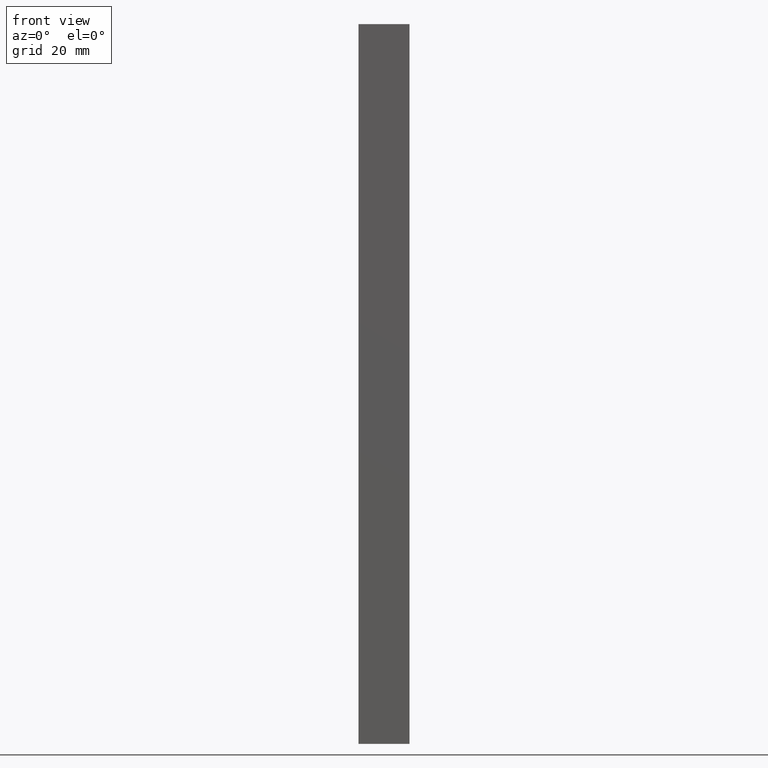
[diagram: clean part render]
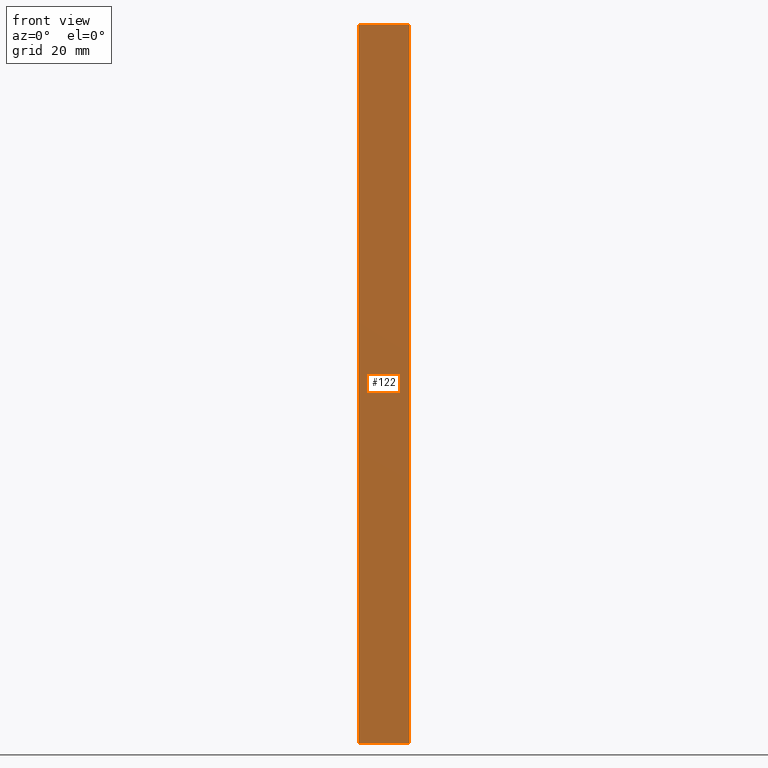
[diagram: same view with one face highlighted and labeled with its STEP entity id]
A machine part, front view. The second image highlights one B-rep face of the part: STEP entity #122.
In plain terms, the highlighted planar face has unit normal (0, -1, 0).
Its self-contained STEP definition (entity closure, byte-faithful):
#16=FACE_OUTER_BOUND('',#23,.T.);
#23=EDGE_LOOP('',(#89,#90,#91,#92));
#30=LINE('',#195,#45);
#34=LINE('',#203,#49);
#35=LINE('',#205,#50);
#36=LINE('',#206,#51);
#45=VECTOR('',#163,10.);
#49=VECTOR('',#169,10.);
#50=VECTOR('',#170,10.);
#51=VECTOR('',#171,10.);
#60=VERTEX_POINT('',#192);
#61=VERTEX_POINT('',#194);
#64=VERTEX_POINT('',#202);
#65=VERTEX_POINT('',#204);
#70=EDGE_CURVE('',#60,#61,#30,.T.);
#74=EDGE_CURVE('',#64,#60,#34,.T.);
#75=EDGE_CURVE('',#65,#64,#35,.T.);
#76=EDGE_CURVE('',#61,#65,#36,.T.);
#89=ORIENTED_EDGE('',*,*,#74,.F.);
#90=ORIENTED_EDGE('',*,*,#75,.F.);
#91=ORIENTED_EDGE('',*,*,#76,.F.);
#92=ORIENTED_EDGE('',*,*,#70,.F.);
#115=PLANE('',#152);
#122=ADVANCED_FACE('',(#16),#115,.T.);
#152=AXIS2_PLACEMENT_3D('',#201,#167,#168);
#163=DIRECTION('',(-1.,-1.95921710227969E-16,0.));
#167=DIRECTION('center_axis',(1.95921710227969E-16,-1.,0.));
#168=DIRECTION('ref_axis',(1.,1.95921710227969E-16,0.));
#169=DIRECTION('',(0.,0.,-1.));
#170=DIRECTION('',(1.,1.95921710227969E-16,0.));
#171=DIRECTION('',(0.,0.,1.));
#192=CARTESIAN_POINT('',(0.,0.,-60.));
#194=CARTESIAN_POINT('',(-8.5,-1.66533453693773E-15,-60.));
#195=CARTESIAN_POINT('',(-8.5,-1.66533453693773E-15,-60.));
#201=CARTESIAN_POINT('Origin',(-8.5,-1.66533453693773E-15,0.));
#202=CARTESIAN_POINT('',(0.,0.,60.));
#203=CARTESIAN_POINT('',(0.,0.,0.));
#204=CARTESIAN_POINT('',(-8.5,-1.66533453693773E-15,60.));
#205=CARTESIAN_POINT('',(-8.5,-1.66533453693773E-15,60.));
#206=CARTESIAN_POINT('',(-8.5,-1.66533453693773E-15,0.));